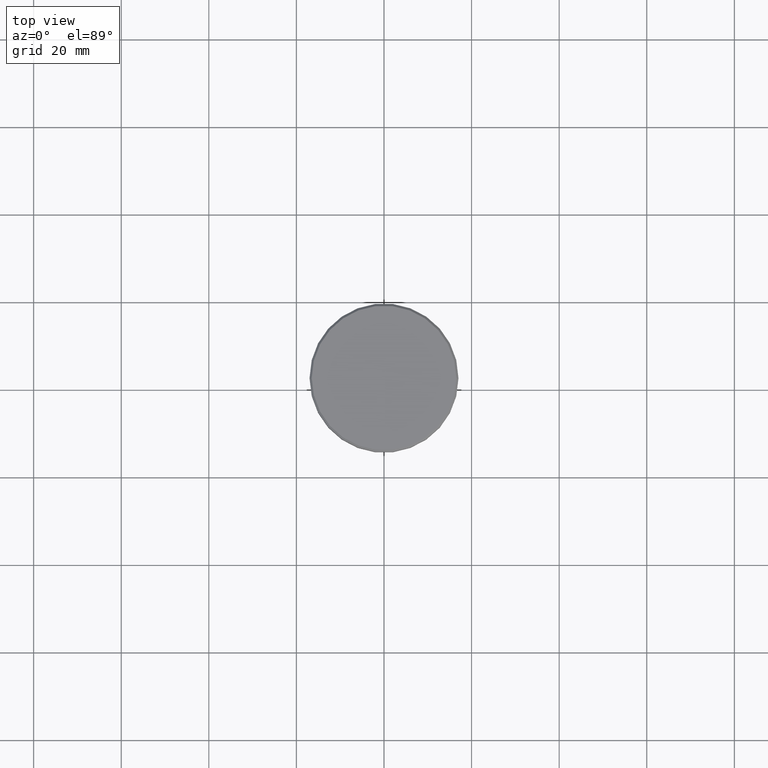
[diagram: clean part render]
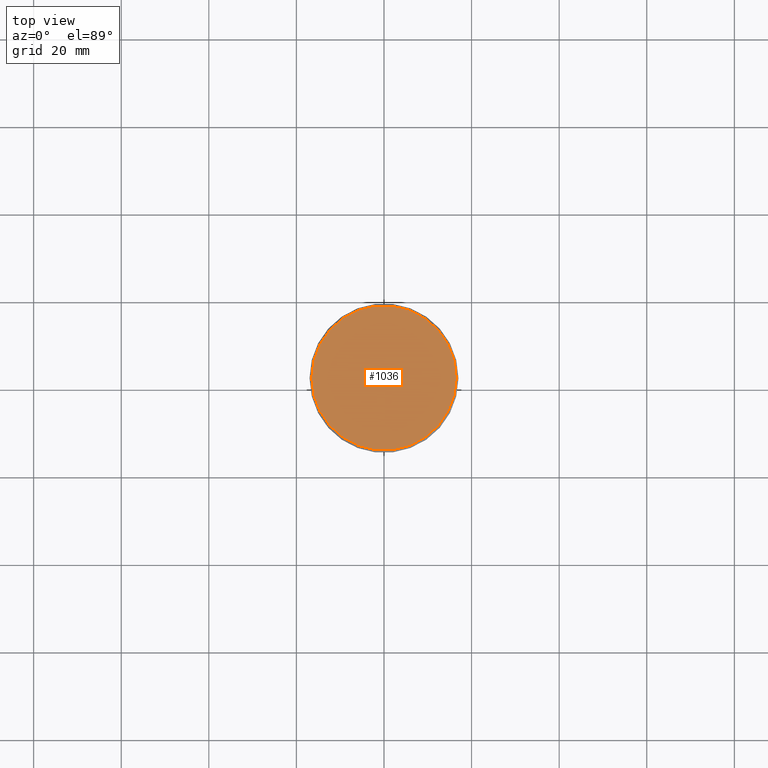
[diagram: same view with one face highlighted and labeled with its STEP entity id]
A machine part, top view. The second image highlights one B-rep face of the part: STEP entity #1036.
In plain terms, the highlighted planar face has unit normal (0, -0, 1).
Its self-contained STEP definition (entity closure, byte-faithful):
#91 = ORIENTED_EDGE ( 'NONE', *, *, #824, .T. ) ;
#156 = CIRCLE ( 'NONE', #1077, 16.50000000000000000 ) ;
#169 = CARTESIAN_POINT ( 'NONE',  ( 16.50000000000000000, 2.051283388571816887E-15, 0.000000000000000000 ) ) ;
#175 = DIRECTION ( 'NONE',  ( -0.000000000000000000, -0.000000000000000000, 1.000000000000000000 ) ) ;
#200 = AXIS2_PLACEMENT_3D ( 'NONE', #382, #175, #460 ) ;
#226 = EDGE_CURVE ( 'NONE', #1097, #946, #156, .T. ) ;
#343 = PLANE ( 'NONE',  #897 ) ;
#382 = CARTESIAN_POINT ( 'NONE',  ( 0.000000000000000000, 0.000000000000000000, 0.000000000000000000 ) ) ;
#433 = FACE_OUTER_BOUND ( 'NONE', #784, .T. ) ;
#460 = DIRECTION ( 'NONE',  ( 1.000000000000000000, 0.000000000000000000, 0.000000000000000000 ) ) ;
#597 = CARTESIAN_POINT ( 'NONE',  ( -16.50000000000000000, 0.000000000000000000, 0.000000000000000000 ) ) ;
#608 = ORIENTED_EDGE ( 'NONE', *, *, #226, .T. ) ;
#667 = CIRCLE ( 'NONE', #200, 16.50000000000000000 ) ;
#715 = DIRECTION ( 'NONE',  ( 1.000000000000000000, 0.000000000000000000, 0.000000000000000000 ) ) ;
#784 = EDGE_LOOP ( 'NONE', ( #91, #608 ) ) ;
#789 = CARTESIAN_POINT ( 'NONE',  ( 0.000000000000000000, 0.000000000000000000, 0.000000000000000000 ) ) ;
#809 = DIRECTION ( 'NONE',  ( 1.000000000000000000, 0.000000000000000000, 0.000000000000000000 ) ) ;
#824 = EDGE_CURVE ( 'NONE', #946, #1097, #667, .T. ) ;
#897 = AXIS2_PLACEMENT_3D ( 'NONE', #789, #1160, #715 ) ;
#946 = VERTEX_POINT ( 'NONE', #597 ) ;
#994 = CARTESIAN_POINT ( 'NONE',  ( 0.000000000000000000, 0.000000000000000000, 0.000000000000000000 ) ) ;
#1009 = DIRECTION ( 'NONE',  ( -0.000000000000000000, -0.000000000000000000, 1.000000000000000000 ) ) ;
#1036 = ADVANCED_FACE ( 'NONE', ( #433 ), #343, .T. ) ;
#1077 = AXIS2_PLACEMENT_3D ( 'NONE', #994, #1009, #809 ) ;
#1097 = VERTEX_POINT ( 'NONE', #169 ) ;
#1160 = DIRECTION ( 'NONE',  ( 0.000000000000000000, -0.000000000000000000, 1.000000000000000000 ) ) ;